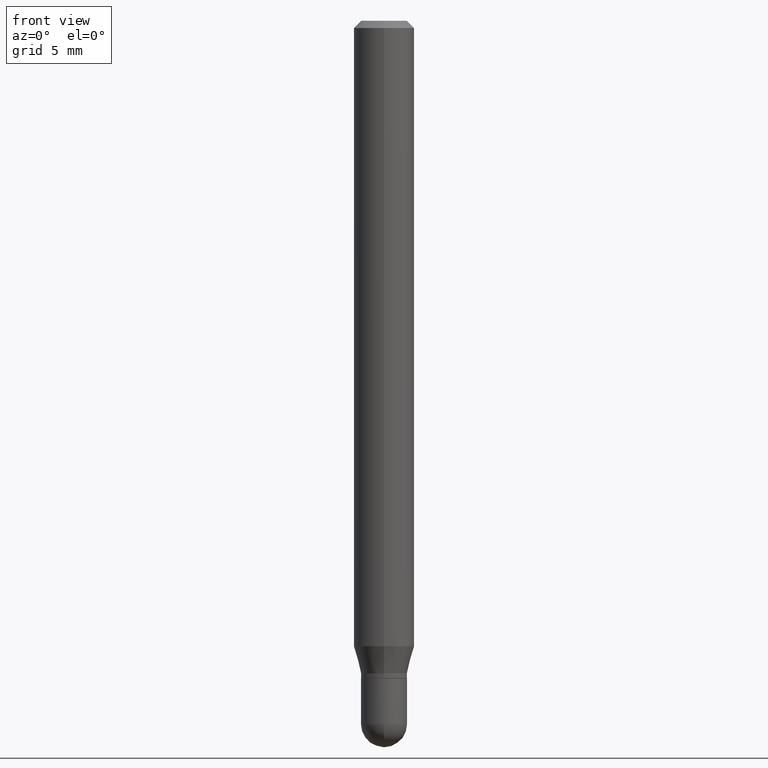
[diagram: clean part render]
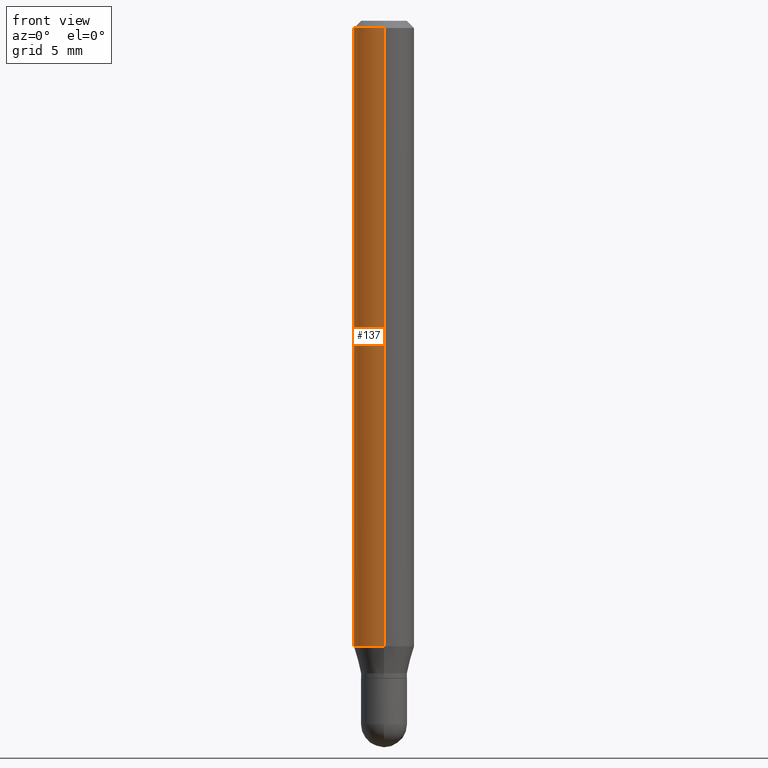
[diagram: same view with one face highlighted and labeled with its STEP entity id]
A machine part, front view. The second image highlights one B-rep face of the part: STEP entity #137.
In plain terms, the highlighted cylindrical surface (edge-blend (fillet) strip) has radius 1.5875 mm, axis along (-0, 0, 1).
Its self-contained STEP definition (entity closure, byte-faithful):
#14 = DIRECTION ( 'NONE',  ( -2.445438376060173173E-29, 3.491524916514068512E-15, 1.000000000000000000 ) ) ;
#33 = DIRECTION ( 'NONE',  ( -6.982962677686265922E-15, -1.000000000000000000, 4.370956789862821150E-15 ) ) ;
#47 = EDGE_LOOP ( 'NONE', ( #438, #348, #135, #394 ) ) ;
#66 = CARTESIAN_POINT ( 'NONE',  ( 4.440892098500943678E-16, 0.06249999999999552441, -1.291519237886468163 ) ) ;
#67 = CYLINDRICAL_SURFACE ( 'NONE', #463, 0.06250000000000000000 ) ;
#77 = DIRECTION ( 'NONE',  ( -6.982962677686265922E-15, -1.000000000000000000, 3.483106191921935554E-15 ) ) ;
#81 = CIRCLE ( 'NONE', #259, 0.06250000000000000000 ) ;
#115 = CARTESIAN_POINT ( 'NONE',  ( 3.158330707747556707E-29, -4.509371599237863193E-15, -1.291519237886467941 ) ) ;
#128 = CIRCLE ( 'NONE', #461, 0.06250000000000000000 ) ;
#135 = ORIENTED_EDGE ( 'NONE', *, *, #296, .T. ) ;
#137 = ADVANCED_FACE ( 'NONE', ( #446 ), #67, .T. ) ;
#159 = CARTESIAN_POINT ( 'NONE',  ( 4.440892098500943678E-16, 0.06249999999999995837, -0.01500000000000028394 ) ) ;
#162 = DIRECTION ( 'NONE',  ( -2.445438376060173173E-29, 3.491524916514068118E-15, 1.000000000000000000 ) ) ;
#185 = DIRECTION ( 'NONE',  ( -6.982962677686265922E-15, -1.000000000000000000, 3.491524916514067723E-15 ) ) ;
#186 = CARTESIAN_POINT ( 'NONE',  ( -4.364351673553916201E-16, -0.06250000000000000000, 2.182203072821292327E-16 ) ) ;
#189 = CARTESIAN_POINT ( 'NONE',  ( -4.364351673553598192E-16, -0.06250000000000446865, -1.291519237886467719 ) ) ;
#197 = VERTEX_POINT ( 'NONE', #159 ) ;
#228 = CARTESIAN_POINT ( 'NONE',  ( 0.000000000000000000, 0.000000000000000000, 0.000000000000000000 ) ) ;
#259 = AXIS2_PLACEMENT_3D ( 'NONE', #115, #274, #33 ) ;
#272 = VERTEX_POINT ( 'NONE', #451 ) ;
#274 = DIRECTION ( 'NONE',  ( -2.445438376060173173E-29, 3.491524916514068118E-15, 1.000000000000000000 ) ) ;
#292 = VERTEX_POINT ( 'NONE', #66 ) ;
#296 = EDGE_CURVE ( 'NONE', #388, #272, #297, .T. ) ;
#297 = LINE ( 'NONE', #186, #391 ) ;
#311 = EDGE_CURVE ( 'NONE', #292, #197, #403, .T. ) ;
#348 = ORIENTED_EDGE ( 'NONE', *, *, #458, .T. ) ;
#365 = EDGE_CURVE ( 'NONE', #197, #272, #128, .T. ) ;
#374 = DIRECTION ( 'NONE',  ( -2.445438376060173173E-29, 3.491524916514068118E-15, 1.000000000000000000 ) ) ;
#387 = CARTESIAN_POINT ( 'NONE',  ( 3.668157564090276033E-31, -5.237287374771125695E-17, -0.01500000000000006710 ) ) ;
#388 = VERTEX_POINT ( 'NONE', #189 ) ;
#391 = VECTOR ( 'NONE', #14, 39.37007874015748143 ) ;
#394 = ORIENTED_EDGE ( 'NONE', *, *, #365, .F. ) ;
#403 = LINE ( 'NONE', #491, #433 ) ;
#433 = VECTOR ( 'NONE', #486, 39.37007874015748143 ) ;
#438 = ORIENTED_EDGE ( 'NONE', *, *, #311, .F. ) ;
#446 = FACE_OUTER_BOUND ( 'NONE', #47, .T. ) ;
#451 = CARTESIAN_POINT ( 'NONE',  ( -4.364351673553912750E-16, -0.06250000000000005551, -0.01499999999999984852 ) ) ;
#458 = EDGE_CURVE ( 'NONE', #292, #388, #81, .T. ) ;
#461 = AXIS2_PLACEMENT_3D ( 'NONE', #387, #162, #77 ) ;
#463 = AXIS2_PLACEMENT_3D ( 'NONE', #228, #374, #185 ) ;
#486 = DIRECTION ( 'NONE',  ( -2.445438376060173173E-29, 3.491524916514068512E-15, 1.000000000000000000 ) ) ;
#491 = CARTESIAN_POINT ( 'NONE',  ( 4.440892098500625669E-16, 0.06250000000000000000, -2.182203072821292327E-16 ) ) ;